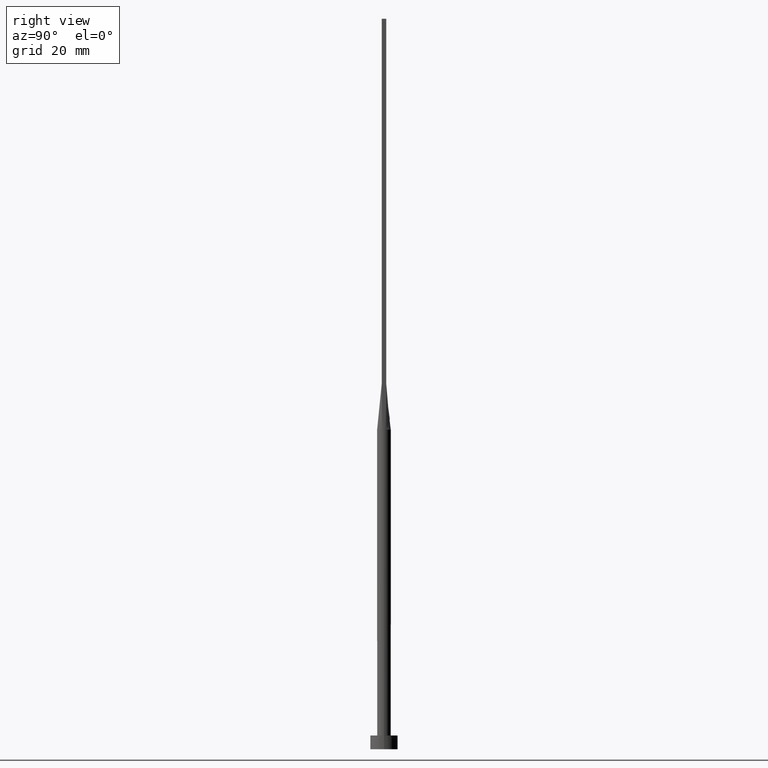
[diagram: clean part render]
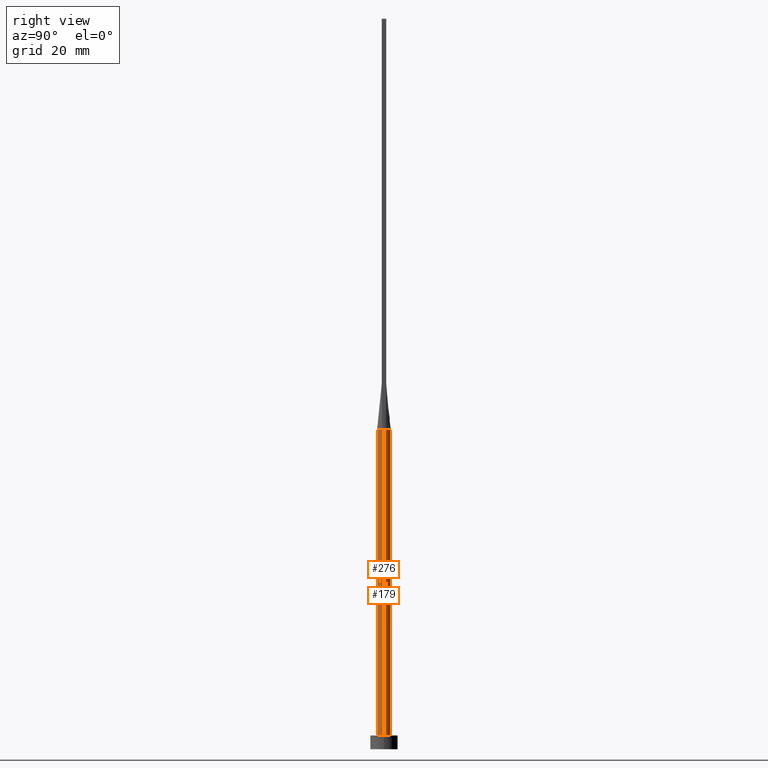
[diagram: same view with one multi-face feature highlighted, each face labeled with its STEP entity id]
A machine part, right view. The highlighted faces form ONE feature: a constant-radius fillet chain: 2 tangent blend faces with common blend radius 1.5 mm. The faces share edges in the B-rep.
Their STEP definitions:
[1] entity #179 (Cylinder):
#4 = CARTESIAN_POINT ( 'NONE',  ( 0.8182264876570948253, 1.266912425724810110, 70.00000000000000000 ) ) ;
#7 = CARTESIAN_POINT ( 'NONE',  ( 1.373020107211261109, 0.6153643240040217455, 70.00000000000001421 ) ) ;
#9 = EDGE_CURVE ( 'NONE', #415, #16, #509, .T. ) ;
#14 = CARTESIAN_POINT ( 'NONE',  ( -1.161819288130433891, 0.9587178835757675932, 70.00000000000001421 ) ) ;
#16 = VERTEX_POINT ( 'NONE', #312 ) ;
#23 = CARTESIAN_POINT ( 'NONE',  ( -1.412646936588081381, 0.5045169241220069933, 70.00000000000000000 ) ) ;
#25 = EDGE_CURVE ( 'NONE', #520, #415, #104, .T. ) ;
#45 = ORIENTED_EDGE ( 'NONE', *, *, #485, .F. ) ;
#53 = CARTESIAN_POINT ( 'NONE',  ( 1.500000000000000222, 1.836970198721030181E-16, 3.000000000000000000 ) ) ;
#58 = CARTESIAN_POINT ( 'NONE',  ( 0.000000000000000000, 0.000000000000000000, 70.00000000000000000 ) ) ;
#62 = B_SPLINE_CURVE_WITH_KNOTS ( 'NONE', 3,
 ( #422, #7, #500, #89, #461, #4, #230, #419, #92, #201, #552, #103, #152, #107, #14, #100, #381, #198 ),
 .UNSPECIFIED., .F., .F.,
 ( 4, 2, 2, 2, 2, 2, 2, 2, 4 ),
 ( 0.000000000000000000, 0.1250000000000000000, 0.2500000000000000000, 0.3750000000000000000, 0.5000000000000000000, 0.6250000000000000000, 0.7500000000000000000, 0.8750000000000000000, 1.000000000000000000 ),
 .UNSPECIFIED. ) ;
#65 = DIRECTION ( 'NONE',  ( -0.000000000000000000, -0.000000000000000000, -1.000000000000000000 ) ) ;
#88 = EDGE_CURVE ( 'NONE', #238, #16, #563, .T. ) ;
#89 = CARTESIAN_POINT ( 'NONE',  ( 1.161819288130433891, 0.9587178835757675932, 70.00000000000000000 ) ) ;
#92 = CARTESIAN_POINT ( 'NONE',  ( 0.1761797990592590679, 1.500000000000000222, 70.00000000000000000 ) ) ;
#93 = CARTESIAN_POINT ( 'NONE',  ( 1.500000000000000222, 1.836970198721030181E-16, 70.00000000000000000 ) ) ;
#96 = EDGE_LOOP ( 'NONE', ( #45, #308, #138, #463, #272, #281 ) ) ;
#100 = CARTESIAN_POINT ( 'NONE',  ( -1.316960349798174557, 0.7311494208568980468, 70.00000000000001421 ) ) ;
#101 = CARTESIAN_POINT ( 'NONE',  ( 1.500000000000000000, 1.053334699963867185E-17, 70.00000000000000000 ) ) ;
#103 = CARTESIAN_POINT ( 'NONE',  ( -0.6732153042498576490, 1.351288176626052495, 70.00000000000000000 ) ) ;
#104 = LINE ( 'NONE', #93, #334 ) ;
#107 = CARTESIAN_POINT ( 'NONE',  ( -1.062433464748102407, 1.070418989248103525, 69.99999999999998579 ) ) ;
#138 = ORIENTED_EDGE ( 'NONE', *, *, #9, .T. ) ;
#146 = VERTEX_POINT ( 'NONE', #23 ) ;
#152 = CARTESIAN_POINT ( 'NONE',  ( -0.8182264876570950474, 1.266912425724810554, 70.00000000000000000 ) ) ;
#169 = DIRECTION ( 'NONE',  ( 0.000000000000000000, 0.000000000000000000, 1.000000000000000000 ) ) ;
#172 = CARTESIAN_POINT ( 'NONE',  ( 0.000000000000000000, 0.000000000000000000, 70.00000000000000000 ) ) ;
#177 = DIRECTION ( 'NONE',  ( 1.000000000000000000, 0.000000000000000000, 0.000000000000000000 ) ) ;
#179 = ADVANCED_FACE ( 'NONE', ( #303 ), #405, .T. ) ;
#196 = DIRECTION ( 'NONE',  ( 0.000000000000000000, 0.000000000000000000, 1.000000000000000000 ) ) ;
#198 = CARTESIAN_POINT ( 'NONE',  ( -1.412646936588081381, 0.5045169241220069933, 70.00000000000000000 ) ) ;
#201 = CARTESIAN_POINT ( 'NONE',  ( -0.1761797990592590402, 1.499999999999999778, 69.99999999999998579 ) ) ;
#210 = EDGE_CURVE ( 'NONE', #522, #146, #62, .T. ) ;
#221 = DIRECTION ( 'NONE',  ( -0.000000000000000000, -0.000000000000000000, -1.000000000000000000 ) ) ;
#230 = CARTESIAN_POINT ( 'NONE',  ( 0.6732153042498577600, 1.351288176626052717, 70.00000000000000000 ) ) ;
#238 = VERTEX_POINT ( 'NONE', #288 ) ;
#242 = AXIS2_PLACEMENT_3D ( 'NONE', #58, #196, #284 ) ;
#247 = CARTESIAN_POINT ( 'NONE',  ( -1.500000000000000222, 0.000000000000000000, 70.00000000000000000 ) ) ;
#253 = AXIS2_PLACEMENT_3D ( 'NONE', #417, #547, #324 ) ;
#272 = ORIENTED_EDGE ( 'NONE', *, *, #432, .F. ) ;
#281 = ORIENTED_EDGE ( 'NONE', *, *, #210, .F. ) ;
#284 = DIRECTION ( 'NONE',  ( 1.000000000000000000, 0.000000000000000000, 0.000000000000000000 ) ) ;
#288 = CARTESIAN_POINT ( 'NONE',  ( -1.500000000000000000, -6.850053904551815961E-17, 70.00000000000000000 ) ) ;
#301 = AXIS2_PLACEMENT_3D ( 'NONE', #578, #221, #309 ) ;
#303 = FACE_OUTER_BOUND ( 'NONE', #96, .T. ) ;
#308 = ORIENTED_EDGE ( 'NONE', *, *, #25, .T. ) ;
#309 = DIRECTION ( 'NONE',  ( -1.000000000000000000, 0.000000000000000000, 0.000000000000000000 ) ) ;
#312 = CARTESIAN_POINT ( 'NONE',  ( -1.500000000000000222, 0.000000000000000000, 3.000000000000000000 ) ) ;
#324 = DIRECTION ( 'NONE',  ( 1.000000000000000000, 0.000000000000000000, 0.000000000000000000 ) ) ;
#334 = VECTOR ( 'NONE', #457, 1000.000000000000000 ) ;
#344 = VECTOR ( 'NONE', #65, 1000.000000000000000 ) ;
#381 = CARTESIAN_POINT ( 'NONE',  ( -1.373020107211261331, 0.6153643240040217455, 70.00000000000001421 ) ) ;
#405 = CYLINDRICAL_SURFACE ( 'NONE', #301, 1.500000000000000222 ) ;
#415 = VERTEX_POINT ( 'NONE', #53 ) ;
#417 = CARTESIAN_POINT ( 'NONE',  ( 0.000000000000000000, 0.000000000000000000, 3.000000000000000000 ) ) ;
#419 = CARTESIAN_POINT ( 'NONE',  ( 0.3520402531411749303, 1.468082505288407447, 69.99999999999998579 ) ) ;
#422 = CARTESIAN_POINT ( 'NONE',  ( 1.412628473635865189, 0.5045102250504699404, 70.00000000000000000 ) ) ;
#428 = CARTESIAN_POINT ( 'NONE',  ( 1.412628473635865189, 0.5045102250504699404, 70.00000000000000000 ) ) ;
#431 = AXIS2_PLACEMENT_3D ( 'NONE', #172, #169, #177 ) ;
#432 = EDGE_CURVE ( 'NONE', #146, #238, #438, .T. ) ;
#438 = CIRCLE ( 'NONE', #242, 1.500000000000000222 ) ;
#457 = DIRECTION ( 'NONE',  ( -0.000000000000000000, -0.000000000000000000, -1.000000000000000000 ) ) ;
#461 = CARTESIAN_POINT ( 'NONE',  ( 1.062433464748102407, 1.070418989248103525, 70.00000000000000000 ) ) ;
#463 = ORIENTED_EDGE ( 'NONE', *, *, #88, .F. ) ;
#485 = EDGE_CURVE ( 'NONE', #520, #522, #564, .T. ) ;
#500 = CARTESIAN_POINT ( 'NONE',  ( 1.316960349798174557, 0.7311494208568982689, 70.00000000000000000 ) ) ;
#509 = CIRCLE ( 'NONE', #253, 1.500000000000000222 ) ;
#520 = VERTEX_POINT ( 'NONE', #101 ) ;
#522 = VERTEX_POINT ( 'NONE', #428 ) ;
#547 = DIRECTION ( 'NONE',  ( 0.000000000000000000, 0.000000000000000000, 1.000000000000000000 ) ) ;
#552 = CARTESIAN_POINT ( 'NONE',  ( -0.3520402531411749858, 1.468082505288407891, 70.00000000000001421 ) ) ;
#563 = LINE ( 'NONE', #247, #344 ) ;
#564 = CIRCLE ( 'NONE', #431, 1.500000000000000222 ) ;
#578 = CARTESIAN_POINT ( 'NONE',  ( 0.000000000000000000, 0.000000000000000000, 70.00000000000000000 ) ) ;
[2] entity #276 (Cylinder):
#3 = ORIENTED_EDGE ( 'NONE', *, *, #88, .T. ) ;
#16 = VERTEX_POINT ( 'NONE', #312 ) ;
#21 = AXIS2_PLACEMENT_3D ( 'NONE', #351, #124, #300 ) ;
#25 = EDGE_CURVE ( 'NONE', #520, #415, #104, .T. ) ;
#31 = AXIS2_PLACEMENT_3D ( 'NONE', #190, #543, #376 ) ;
#43 = EDGE_CURVE ( 'NONE', #238, #298, #75, .T. ) ;
#53 = CARTESIAN_POINT ( 'NONE',  ( 1.500000000000000222, 1.836970198721030181E-16, 3.000000000000000000 ) ) ;
#65 = DIRECTION ( 'NONE',  ( -0.000000000000000000, -0.000000000000000000, -1.000000000000000000 ) ) ;
#75 = CIRCLE ( 'NONE', #412, 1.500000000000000222 ) ;
#88 = EDGE_CURVE ( 'NONE', #238, #16, #563, .T. ) ;
#93 = CARTESIAN_POINT ( 'NONE',  ( 1.500000000000000222, 1.836970198721030181E-16, 70.00000000000000000 ) ) ;
#101 = CARTESIAN_POINT ( 'NONE',  ( 1.500000000000000000, 1.053334699963867185E-17, 70.00000000000000000 ) ) ;
#104 = LINE ( 'NONE', #93, #334 ) ;
#124 = DIRECTION ( 'NONE',  ( -0.000000000000000000, -0.000000000000000000, -1.000000000000000000 ) ) ;
#156 = DIRECTION ( 'NONE',  ( 1.000000000000000000, 0.000000000000000000, 0.000000000000000000 ) ) ;
#181 = DIRECTION ( 'NONE',  ( 1.000000000000000000, 2.664535259100375697E-15, 0.000000000000000000 ) ) ;
#183 = ORIENTED_EDGE ( 'NONE', *, *, #318, .T. ) ;
#188 = VERTEX_POINT ( 'NONE', #403 ) ;
#190 = CARTESIAN_POINT ( 'NONE',  ( 0.000000000000000000, 0.000000000000000000, 3.000000000000000000 ) ) ;
#193 = AXIS2_PLACEMENT_3D ( 'NONE', #538, #580, #181 ) ;
#233 = EDGE_CURVE ( 'NONE', #298, #188, #555, .T. ) ;
#238 = VERTEX_POINT ( 'NONE', #288 ) ;
#241 = DIRECTION ( 'NONE',  ( 0.000000000000000000, 0.000000000000000000, 1.000000000000000000 ) ) ;
#247 = CARTESIAN_POINT ( 'NONE',  ( -1.500000000000000222, 0.000000000000000000, 70.00000000000000000 ) ) ;
#250 = EDGE_CURVE ( 'NONE', #188, #520, #285, .T. ) ;
#256 = CYLINDRICAL_SURFACE ( 'NONE', #21, 1.500000000000000222 ) ;
#276 = ADVANCED_FACE ( 'NONE', ( #392 ), #256, .T. ) ;
#285 = CIRCLE ( 'NONE', #193, 1.500000000000000222 ) ;
#288 = CARTESIAN_POINT ( 'NONE',  ( -1.500000000000000000, -6.850053904551815961E-17, 70.00000000000000000 ) ) ;
#298 = VERTEX_POINT ( 'NONE', #440 ) ;
#300 = DIRECTION ( 'NONE',  ( -1.000000000000000000, 0.000000000000000000, 0.000000000000000000 ) ) ;
#312 = CARTESIAN_POINT ( 'NONE',  ( -1.500000000000000222, 0.000000000000000000, 3.000000000000000000 ) ) ;
#318 = EDGE_CURVE ( 'NONE', #16, #415, #356, .T. ) ;
#320 = ORIENTED_EDGE ( 'NONE', *, *, #233, .F. ) ;
#332 = ORIENTED_EDGE ( 'NONE', *, *, #43, .F. ) ;
#334 = VECTOR ( 'NONE', #457, 1000.000000000000000 ) ;
#339 = DIRECTION ( 'NONE',  ( 1.000000000000000000, 0.000000000000000000, 0.000000000000000000 ) ) ;
#344 = VECTOR ( 'NONE', #65, 1000.000000000000000 ) ;
#351 = CARTESIAN_POINT ( 'NONE',  ( 0.000000000000000000, 0.000000000000000000, 70.00000000000000000 ) ) ;
#356 = CIRCLE ( 'NONE', #31, 1.500000000000000222 ) ;
#376 = DIRECTION ( 'NONE',  ( 1.000000000000000000, 0.000000000000000000, 0.000000000000000000 ) ) ;
#379 = ORIENTED_EDGE ( 'NONE', *, *, #25, .F. ) ;
#383 = CARTESIAN_POINT ( 'NONE',  ( 0.000000000000000000, 0.000000000000000000, 70.00000000000000000 ) ) ;
#392 = FACE_OUTER_BOUND ( 'NONE', #524, .T. ) ;
#403 = CARTESIAN_POINT ( 'NONE',  ( 1.412648369950143756, -0.5045174509283282260, 70.00000000000000000 ) ) ;
#412 = AXIS2_PLACEMENT_3D ( 'NONE', #383, #558, #156 ) ;
#415 = VERTEX_POINT ( 'NONE', #53 ) ;
#440 = CARTESIAN_POINT ( 'NONE',  ( -1.412629890847167724, -0.5045107419440655327, 70.00000000000000000 ) ) ;
#454 = ORIENTED_EDGE ( 'NONE', *, *, #250, .F. ) ;
#457 = DIRECTION ( 'NONE',  ( -0.000000000000000000, -0.000000000000000000, -1.000000000000000000 ) ) ;
#470 = CARTESIAN_POINT ( 'NONE',  ( 0.000000000000000000, 0.000000000000000000, 70.00000000000000000 ) ) ;
#520 = VERTEX_POINT ( 'NONE', #101 ) ;
#524 = EDGE_LOOP ( 'NONE', ( #379, #454, #320, #332, #3, #183 ) ) ;
#538 = CARTESIAN_POINT ( 'NONE',  ( 0.000000000000000000, 0.000000000000000000, 70.00000000000000000 ) ) ;
#540 = AXIS2_PLACEMENT_3D ( 'NONE', #470, #241, #339 ) ;
#543 = DIRECTION ( 'NONE',  ( 0.000000000000000000, 0.000000000000000000, 1.000000000000000000 ) ) ;
#555 = CIRCLE ( 'NONE', #540, 1.500000000000000222 ) ;
#558 = DIRECTION ( 'NONE',  ( 0.000000000000000000, 0.000000000000000000, 1.000000000000000000 ) ) ;
#563 = LINE ( 'NONE', #247, #344 ) ;
#580 = DIRECTION ( 'NONE',  ( 0.000000000000000000, 0.000000000000000000, 1.000000000000000000 ) ) ;